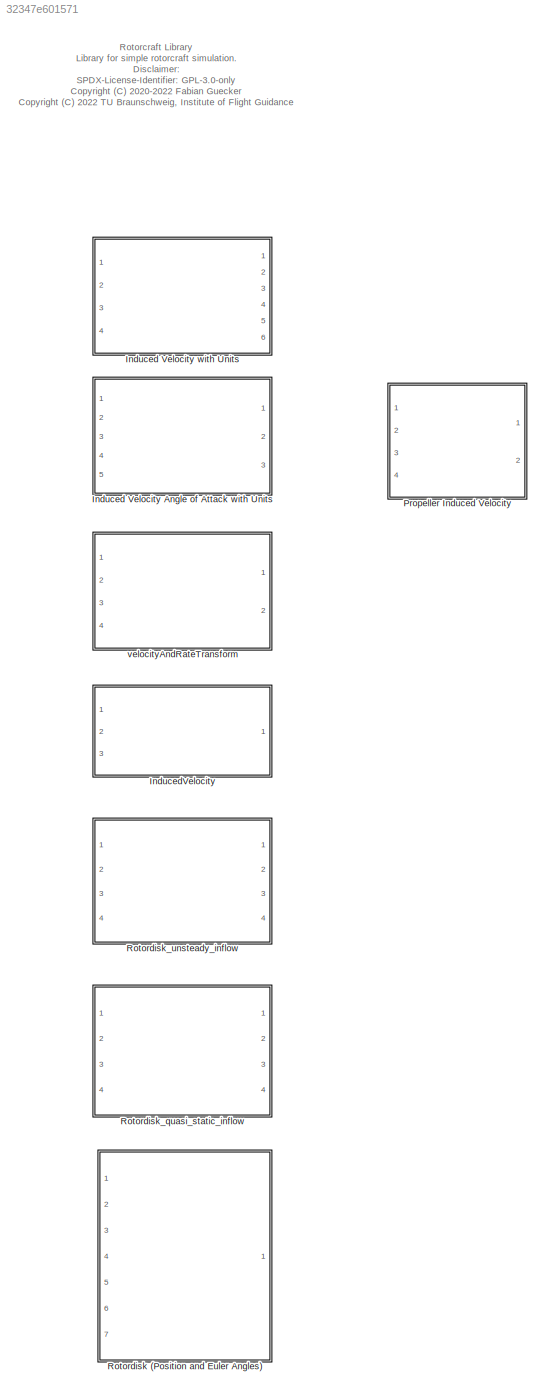
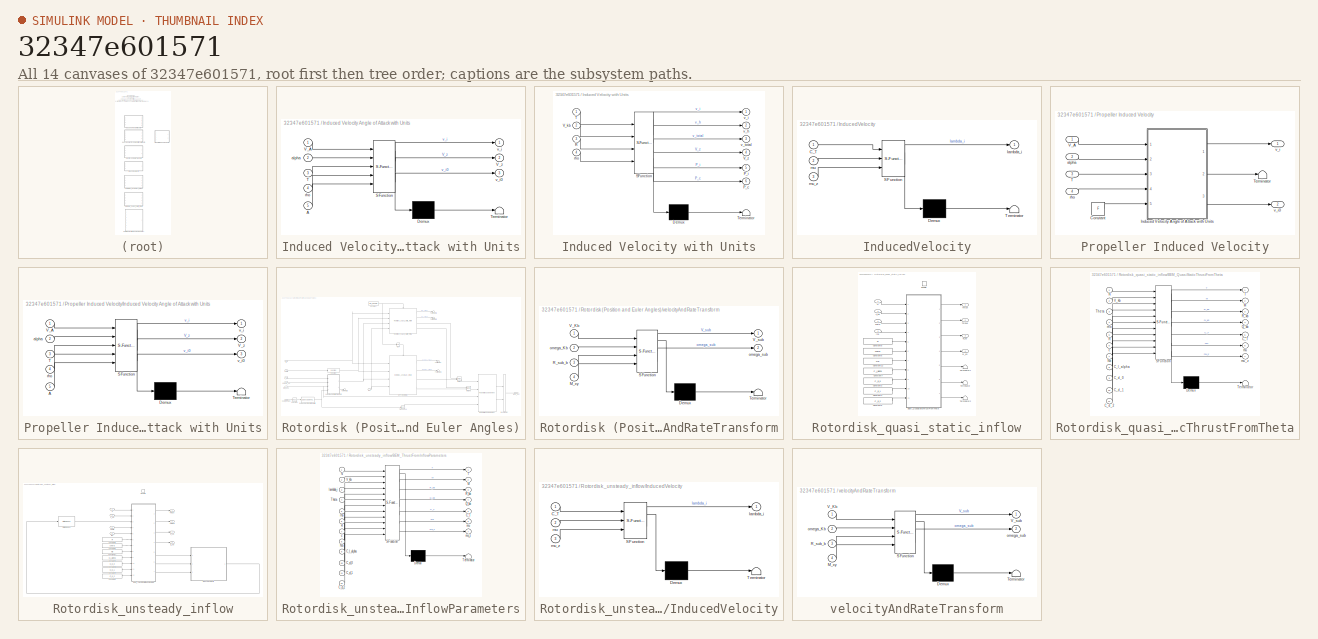
[diagram: thumbnail index - all 14 canvases of the model, root first then tree order]
MODEL slx_32347e601571
KIND library
CONFIG AbsTol = auto
CONFIG EnableMultiTasking = off
CONFIG FixedStep = auto
CONFIG MaxStep = auto
CONFIG MinStep = auto
CONFIG RelTol = 1e-3
CONFIG SampleTimeConstraint = Unconstrained
CONFIG Solver = VariableStepAuto
CONFIG SolverName = VariableStepAuto
CONFIG StartTime = 0.0
CONFIG StopTime = 10.0
BLOCK [SubSystem] Induced Velocity Angle of Attack with Units
  ErrorFcn = Stateflow.Translate.translate
  PermitHierarchicalResolution = ExplicitOnly
  Ports = [5, 3]
  RequestExecContextInheritance = off
  SFBlockType = MATLAB Function
  TreatAsAtomicUnit = on
BLOCK [Demux] Induced Velocity Angle of Attack with Units/ Demux 
  Outputs = 1
  Ports = [1, 1]
BLOCK [S-Function] Induced Velocity Angle of Attack with Units/ SFunction 
  EnableBusSupport = off
  FunctionName = sf_sfun
  PortCounts = [5 4]
  Ports = [5, 4]
  SFcnIsStateOwnerBlock = off
  SFunctionDeploymentMode = off
  Tag = Stateflow S-Function rotorcraft_lib 5
BLOCK [Terminator] Induced Velocity Angle of Attack with Units/ Terminator 
BLOCK [Inport] Induced Velocity Angle of Attack with Units/A
  IconDisplay = Port number
  Port = 5
BLOCK [Inport] Induced Velocity Angle of Attack with Units/T
  IconDisplay = Port number
  Port = 3
BLOCK [Inport] Induced Velocity Angle of Attack with Units/V_A
  IconDisplay = Port number
BLOCK [Outport] Induced Velocity Angle of Attack with Units/V_z
  IconDisplay = Port number
  Port = 2
  VectorParamsAs1DForOutWhenUnconnected = on
BLOCK [Inport] Induced Velocity Angle of Attack with Units/alpha
  IconDisplay = Port number
  Port = 2
BLOCK [Inport] Induced Velocity Angle of Attack with Units/rho
  IconDisplay = Port number
  Port = 4
BLOCK [Outport] Induced Velocity Angle of Attack with Units/v_i
  IconDisplay = Port number
  VectorParamsAs1DForOutWhenUnconnected = on
BLOCK [Outport] Induced Velocity Angle of Attack with Units/v_i0
  IconDisplay = Port number
  Port = 3
BLOCK [SubSystem] Induced Velocity with Units
  ErrorFcn = Stateflow.Translate.translate
  PermitHierarchicalResolution = ExplicitOnly
  Ports = [4, 6]
  RequestExecContextInheritance = off
  SFBlockType = MATLAB Function
  TreatAsAtomicUnit = on
BLOCK [Demux] Induced Velocity with Units/ Demux 
  Outputs = 1
  Ports = [1, 1]
BLOCK [S-Function] Induced Velocity with Units/ SFunction 
  EnableBusSupport = off
  FunctionName = sf_sfun
  PortCounts = [4 7]
  Ports = [4, 7]
  SFcnIsStateOwnerBlock = off
  SFunctionDeploymentMode = off
  Tag = Stateflow S-Function rotorcraft_lib 6
BLOCK [Terminator] Induced Velocity with Units/ Terminator 
BLOCK [Outport] Induced Velocity with Units/P_c
  IconDisplay = Port number
  Port = 6
BLOCK [Outport] Induced Velocity with Units/P_i
  IconDisplay = Port number
  Port = 5
BLOCK [Inport] Induced Velocity with Units/R
  IconDisplay = Port number
  Port = 3
BLOCK [Inport] Induced Velocity with Units/T
  IconDisplay = Port number
BLOCK [Inport] Induced Velocity with Units/V_kb
  IconDisplay = Port number
  Port = 2
BLOCK [Outport] Induced Velocity with Units/V_z
  IconDisplay = Port number
  Port = 4
BLOCK [Inport] Induced Velocity with Units/rho
  IconDisplay = Port number
  Port = 4
BLOCK [Outport] Induced Velocity with Units/v_h
  IconDisplay = Port number
  Port = 2
  VectorParamsAs1DForOutWhenUnconnected = on
BLOCK [Outport] Induced Velocity with Units/v_i
  IconDisplay = Port number
  VectorParamsAs1DForOutWhenUnconnected = on
BLOCK [Outport] Induced Velocity with Units/v_total
  IconDisplay = Port number
  Port = 3
BLOCK [SubSystem] InducedVelocity
  ErrorFcn = Stateflow.Translate.translate
  PermitHierarchicalResolution = ExplicitOnly
  Ports = [3, 1]
  RequestExecContextInheritance = off
  SFBlockType = MATLAB Function
  TreatAsAtomicUnit = on
BLOCK [Demux] InducedVelocity/ Demux 
  Outputs = 1
  Ports = [1, 1]
BLOCK [S-Function] InducedVelocity/ SFunction 
  EnableBusSupport = off
  FunctionName = sf_sfun
  PortCounts = [3 2]
  Ports = [3, 2]
  SFcnIsStateOwnerBlock = off
  SFunctionDeploymentMode = off
  Tag = Stateflow S-Function rotorcraft_lib 1
BLOCK [Terminator] InducedVelocity/ Terminator 
BLOCK [Inport] InducedVelocity/C_T
  IconDisplay = Port number
BLOCK [Outport] InducedVelocity/lambda_i
  IconDisplay = Port number
  VectorParamsAs1DForOutWhenUnconnected = on
BLOCK [Inport] InducedVelocity/mu
  IconDisplay = Port number
  Port = 2
BLOCK [Inport] InducedVelocity/mu_z
  IconDisplay = Port number
  Port = 3
BLOCK [SubSystem] Propeller Induced Velocity
  Ports = [4, 2]
  RequestExecContextInheritance = off
BLOCK [Constant] Propeller Induced Velocity/Constant
  Value = F
BLOCK [SubSystem] Propeller Induced Velocity/Induced Velocity Angle of Attack with Units
  ErrorFcn = Stateflow.Translate.translate
  PermitHierarchicalResolution = ExplicitOnly
  Ports = [5, 3]
  RequestExecContextInheritance = off
  SFBlockType = MATLAB Function
  TreatAsAtomicUnit = on
BLOCK [Demux] Propeller Induced Velocity/Induced Velocity Angle of Attack with Units/ Demux 
  Outputs = 1
  Ports = [1, 1]
BLOCK [S-Function] Propeller Induced Velocity/Induced Velocity Angle of Attack with Units/ SFunction 
  EnableBusSupport = off
  FunctionName = sf_sfun
  PortCounts = [5 4]
  Ports = [5, 4]
  SFcnIsStateOwnerBlock = off
  SFunctionDeploymentMode = off
  Tag = Stateflow S-Function rotorcraft_lib 9
BLOCK [Terminator] Propeller Induced Velocity/Induced Velocity Angle of Attack with Units/ Terminator 
BLOCK [Inport] Propeller Induced Velocity/Induced Velocity Angle of Attack with Units/A
  IconDisplay = Port number
  Port = 5
BLOCK [Inport] Propeller Induced Velocity/Induced Velocity Angle of Attack with Units/T
  IconDisplay = Port number
  Port = 3
BLOCK [Inport] Propeller Induced Velocity/Induced Velocity Angle of Attack with Units/V_A
  IconDisplay = Port number
BLOCK [Outport] Propeller Induced Velocity/Induced Velocity Angle of Attack with Units/V_z
  IconDisplay = Port number
  Port = 2
  VectorParamsAs1DForOutWhenUnconnected = on
BLOCK [Inport] Propeller Induced Velocity/Induced Velocity Angle of Attack with Units/alpha
  IconDisplay = Port number
  Port = 2
BLOCK [Inport] Propeller Induced Velocity/Induced Velocity Angle of Attack with Units/rho
  IconDisplay = Port number
  Port = 4
BLOCK [Outport] Propeller Induced Velocity/Induced Velocity Angle of Attack with Units/v_i
  IconDisplay = Port number
  VectorParamsAs1DForOutWhenUnconnected = on
BLOCK [Outport] Propeller Induced Velocity/Induced Velocity Angle of Attack with Units/v_i0
  IconDisplay = Port number
  Port = 3
BLOCK [Inport] Propeller Induced Velocity/T
  IconDisplay = Port number
  Port = 3
BLOCK [Terminator] Propeller Induced Velocity/Terminator
BLOCK [Inport] Propeller Induced Velocity/V_A
  IconDisplay = Port number
BLOCK [Inport] Propeller Induced Velocity/alpha
  IconDisplay = Port number
  Port = 2
BLOCK [Inport] Propeller Induced Velocity/rho
  IconDisplay = Port number
  Port = 4
BLOCK [Outport] Propeller Induced Velocity/v_i
  IconDisplay = Port number
BLOCK [Outport] Propeller Induced Velocity/v_i0
  IconDisplay = Port number
  Port = 2
BLOCK [SubSystem] Rotordisk (Position and Euler Angles)
  Ports = [7, 1]
  RequestExecContextInheritance = off
BLOCK [BusCreator] Rotordisk (Position and Euler Angles)/Bus Creator
  DisplayOption = bar
  InheritFromInputs = on
  Inputs = 2
  Ports = [2, 1]
BLOCK [Outport] Rotordisk (Position and Euler Angles)/Bus_out
  IconDisplay = Port number
  VectorParamsAs1DForOutWhenUnconnected = on
BLOCK [Constant] Rotordisk (Position and Euler Angles)/Constant
  Value = QS_Enable
BLOCK [Reference] Rotordisk (Position and Euler Angles)/Euler Angles to Rotation Matrix  REF=axes_transformation_lib/Euler Angles to Rotation Matrix  (lib defined in slx_69e2413c78c0)
  Ports = [1, 1]
  SourceBlock = axes_transformation_lib/Euler Angles to Rotation Matrix
  SourceProductName = LADAC
  SourceType = SubSystem
BLOCK [Reference] Rotordisk (Position and Euler Angles)/Force to force and moment  REF=axes_transformation_lib/Force to force and moment  (lib defined in slx_69e2413c78c0)
  Ports = [4, 2]
  SourceBlock = axes_transformation_lib/Force to force and moment
  SourceProductName = LADAC
  SourceType = SubSystem
BLOCK [Merge] Rotordisk (Position and Euler Angles)/Merge
  Ports = [2, 1]
BLOCK [Merge] Rotordisk (Position and Euler Angles)/Merge1
  Ports = [2, 1]
BLOCK [Inport] Rotordisk (Position and Euler Angles)/N
  IconDisplay = Port number
  Port = 2
BLOCK [Logic] Rotordisk (Position and Euler Angles)/NOT
  AllPortsSameDT = off
  IconShape = distinctive
  Operator = NOT
  OutDataTypeStr = boolean
  Ports = [1, 1]
BLOCK [Reference] Rotordisk (Position and Euler Angles)/OPT_Rotordisk  REF=$bdroot/Rotordisk_unsteady_inflow
  Ports = [4, 4, 1]
  SourceBlock = $bdroot/Rotordisk_unsteady_inflow
BLOCK [Reference] Rotordisk (Position and Euler Angles)/Rotordisk_quasi_static_inflow  REF=$bdroot/Rotordisk_quasi_static_inflow
  Ports = [4, 4, 1]
  SourceBlock = $bdroot/Rotordisk_quasi_static_inflow
BLOCK [Terminator] Rotordisk (Position and Euler Angles)/Terminator
BLOCK [Terminator] Rotordisk (Position and Euler Angles)/Terminator1
BLOCK [Terminator] Rotordisk (Position and Euler Angles)/Terminator2
BLOCK [Terminator] Rotordisk (Position and Euler Angles)/Terminator5
BLOCK [Terminator] Rotordisk (Position and Euler Angles)/Terminator6
BLOCK [Inport] Rotordisk (Position and Euler Angles)/Theta
  IconDisplay = Port number
  Port = 4
BLOCK [Math] Rotordisk (Position and Euler Angles)/Transpose
  Operator = transpose
  Ports = [1, 1]
BLOCK [Inport] Rotordisk (Position and Euler Angles)/V_kb
  IconDisplay = Port number
  Port = 5
BLOCK [Reference] Rotordisk (Position and Euler Angles)/deg2rad  REF=unit_conversions_lib/deg2rad  (lib defined in slx_ae2855d4d91e)
  Ports = [1, 1]
  SourceBlock = unit_conversions_lib/deg2rad
  SourceProductName = LADAC
BLOCK [Reference] Rotordisk (Position and Euler Angles)/deg2rad1  REF=unit_conversions_lib/deg2rad  (lib defined in slx_ae2855d4d91e)
  Ports = [1, 1]
  SourceBlock = unit_conversions_lib/deg2rad
  SourceProductName = LADAC
BLOCK [Inport] Rotordisk (Position and Euler Angles)/euler_angles
  IconDisplay = Port number
  Port = 3
BLOCK [Inport] Rotordisk (Position and Euler Angles)/omega_kb
  IconDisplay = Port number
  Port = 6
BLOCK [Inport] Rotordisk (Position and Euler Angles)/rho
  IconDisplay = Port number
  Port = 7
BLOCK [Inport] Rotordisk (Position and Euler Angles)/rotor_pos
  IconDisplay = Port number
BLOCK [SubSystem] Rotordisk (Position and Euler Angles)/velocityAndRateTransform
  ErrorFcn = Stateflow.Translate.translate
  PermitHierarchicalResolution = ExplicitOnly
  Ports = [4, 2]
  RequestExecContextInheritance = off
  SFBlockType = MATLAB Function
  TreatAsAtomicUnit = on
BLOCK [Demux] Rotordisk (Position and Euler Angles)/velocityAndRateTransform/ Demux 
  Outputs = 1
  Ports = [1, 1]
BLOCK [S-Function] Rotordisk (Position and Euler Angles)/velocityAndRateTransform/ SFunction 
  EnableBusSupport = off
  FunctionName = sf_sfun
  PortCounts = [4 3]
  Ports = [4, 3]
  SFcnIsStateOwnerBlock = off
  SFunctionDeploymentMode = off
  Tag = Stateflow S-Function rotorcraft_lib 4
BLOCK [Terminator] Rotordisk (Position and Euler Angles)/velocityAndRateTransform/ Terminator 
BLOCK [Inport] Rotordisk (Position and Euler Angles)/velocityAndRateTransform/M_xy
  IconDisplay = Port number
  Port = 4
BLOCK [Inport] Rotordisk (Position and Euler Angles)/velocityAndRateTransform/R_sub_b
  IconDisplay = Port number
  Port = 3
BLOCK [Inport] Rotordisk (Position and Euler Angles)/velocityAndRateTransform/V_Kb
  IconDisplay = Port number
BLOCK [Outport] Rotordisk (Position and Euler Angles)/velocityAndRateTransform/V_sub
  IconDisplay = Port number
  VectorParamsAs1DForOutWhenUnconnected = on
BLOCK [Inport] Rotordisk (Position and Euler Angles)/velocityAndRateTransform/omega_Kb
  IconDisplay = Port number
  Port = 2
BLOCK [Outport] Rotordisk (Position and Euler Angles)/velocityAndRateTransform/omega_sub
  IconDisplay = Port number
  Port = 2
  VectorParamsAs1DForOutWhenUnconnected = on
BLOCK [SubSystem] Rotordisk_quasi_static_inflow
  Ports = [4, 4, 1]
  RequestExecContextInheritance = off
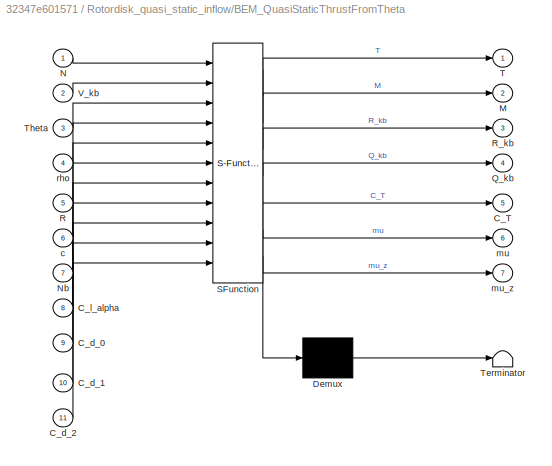
BLOCK [SubSystem] Rotordisk_quasi_static_inflow/BEM_QuasiStaticThrustFromTheta
  ErrorFcn = Stateflow.Translate.translate
  PermitHierarchicalResolution = ExplicitOnly
  Ports = [11, 7]
  RequestExecContextInheritance = off
  SFBlockType = MATLAB Function
  TreatAsAtomicUnit = on
BLOCK [Demux] Rotordisk_quasi_static_inflow/BEM_QuasiStaticThrustFromTheta/ Demux 
  Outputs = 1
  Ports = [1, 1]
BLOCK [S-Function] Rotordisk_quasi_static_inflow/BEM_QuasiStaticThrustFromTheta/ SFunction 
  EnableBusSupport = off
  FunctionName = sf_sfun
  PortCounts = [11 8]
  Ports = [11, 8]
  SFcnIsStateOwnerBlock = off
  SFunctionDeploymentMode = off
  Tag = Stateflow S-Function rotorcraft_lib 2
BLOCK [Terminator] Rotordisk_quasi_static_inflow/BEM_QuasiStaticThrustFromTheta/ Terminator 
BLOCK [Outport] Rotordisk_quasi_static_inflow/BEM_QuasiStaticThrustFromTheta/C_T
  IconDisplay = Port number
  Port = 5
  VectorParamsAs1DForOutWhenUnconnected = on
BLOCK [Inport] Rotordisk_quasi_static_inflow/BEM_QuasiStaticThrustFromTheta/C_d_0
  IconDisplay = Port number
  Port = 9
BLOCK [Inport] Rotordisk_quasi_static_inflow/BEM_QuasiStaticThrustFromTheta/C_d_1
  IconDisplay = Port number
  Port = 10
BLOCK [Inport] Rotordisk_quasi_static_inflow/BEM_QuasiStaticThrustFromTheta/C_d_2
  IconDisplay = Port number
  Port = 11
BLOCK [Inport] Rotordisk_quasi_static_inflow/BEM_QuasiStaticThrustFromTheta/C_l_alpha
  IconDisplay = Port number
  Port = 8
BLOCK [Outport] Rotordisk_quasi_static_inflow/BEM_QuasiStaticThrustFromTheta/M
  IconDisplay = Port number
  Port = 2
  VectorParamsAs1DForOutWhenUnconnected = on
BLOCK [Inport] Rotordisk_quasi_static_inflow/BEM_QuasiStaticThrustFromTheta/N
  IconDisplay = Port number
BLOCK [Inport] Rotordisk_quasi_static_inflow/BEM_QuasiStaticThrustFromTheta/Nb
  IconDisplay = Port number
  Port = 7
BLOCK [Outport] Rotordisk_quasi_static_inflow/BEM_QuasiStaticThrustFromTheta/Q_kb
  IconDisplay = Port number
  Port = 4
  VectorParamsAs1DForOutWhenUnconnected = on
BLOCK [Inport] Rotordisk_quasi_static_inflow/BEM_QuasiStaticThrustFromTheta/R
  IconDisplay = Port number
  Port = 5
BLOCK [Outport] Rotordisk_quasi_static_inflow/BEM_QuasiStaticThrustFromTheta/R_kb
  IconDisplay = Port number
  Port = 3
  VectorParamsAs1DForOutWhenUnconnected = on
BLOCK [Outport] Rotordisk_quasi_static_inflow/BEM_QuasiStaticThrustFromTheta/T
  IconDisplay = Port number
  VectorParamsAs1DForOutWhenUnconnected = on
BLOCK [Inport] Rotordisk_quasi_static_inflow/BEM_QuasiStaticThrustFromTheta/Theta
  IconDisplay = Port number
  Port = 3
BLOCK [Inport] Rotordisk_quasi_static_inflow/BEM_QuasiStaticThrustFromTheta/V_kb
  IconDisplay = Port number
  Port = 2
BLOCK [Inport] Rotordisk_quasi_static_inflow/BEM_QuasiStaticThrustFromTheta/c
  IconDisplay = Port number
  Port = 6
BLOCK [Outport] Rotordisk_quasi_static_inflow/BEM_QuasiStaticThrustFromTheta/mu
  IconDisplay = Port number
  Port = 6
  VectorParamsAs1DForOutWhenUnconnected = on
BLOCK [Outport] Rotordisk_quasi_static_inflow/BEM_QuasiStaticThrustFromTheta/mu_z
  IconDisplay = Port number
  Port = 7
  VectorParamsAs1DForOutWhenUnconnected = on
BLOCK [Inport] Rotordisk_quasi_static_inflow/BEM_QuasiStaticThrustFromTheta/rho
  IconDisplay = Port number
  Port = 4
BLOCK [Constant] Rotordisk_quasi_static_inflow/Constant12
  Value = Nb
BLOCK [Constant] Rotordisk_quasi_static_inflow/Constant3
  Value = C_d_0
BLOCK [Constant] Rotordisk_quasi_static_inflow/Constant4
  Value = C_d_1
BLOCK [Constant] Rotordisk_quasi_static_inflow/Constant5
  Value = C_d_2
BLOCK [Constant] Rotordisk_quasi_static_inflow/Constant6
  Value = chord
BLOCK [Constant] Rotordisk_quasi_static_inflow/Constant7
  Value = C_l_alpha
BLOCK [Constant] Rotordisk_quasi_static_inflow/Constant8
  Value = R
BLOCK [EnablePort] Rotordisk_quasi_static_inflow/Enable
  Ports = []
BLOCK [Inport] Rotordisk_quasi_static_inflow/N
  IconDisplay = Port number
BLOCK [Outport] Rotordisk_quasi_static_inflow/Q_kb
  IconDisplay = Port number
  Port = 4
  VectorParamsAs1DForOutWhenUnconnected = on
BLOCK [Outport] Rotordisk_quasi_static_inflow/R_kb
  IconDisplay = Port number
  Port = 3
  VectorParamsAs1DForOutWhenUnconnected = on
BLOCK [Terminator] Rotordisk_quasi_static_inflow/Terminator
BLOCK [Terminator] Rotordisk_quasi_static_inflow/Terminator1
BLOCK [Terminator] Rotordisk_quasi_static_inflow/Terminator2
BLOCK [Inport] Rotordisk_quasi_static_inflow/Theta
  IconDisplay = Port number
  Port = 2
BLOCK [Outport] Rotordisk_quasi_static_inflow/Thrust
  IconDisplay = Port number
  VectorParamsAs1DForOutWhenUnconnected = on
BLOCK [Outport] Rotordisk_quasi_static_inflow/Torque
  IconDisplay = Port number
  Port = 2
  VectorParamsAs1DForOutWhenUnconnected = on
BLOCK [Inport] Rotordisk_quasi_static_inflow/V_kb
  IconDisplay = Port number
  Port = 3
BLOCK [Inport] Rotordisk_quasi_static_inflow/rho
  IconDisplay = Port number
  Port = 4
BLOCK [SubSystem] Rotordisk_unsteady_inflow
  Ports = [4, 4, 1]
  RequestExecContextInheritance = off
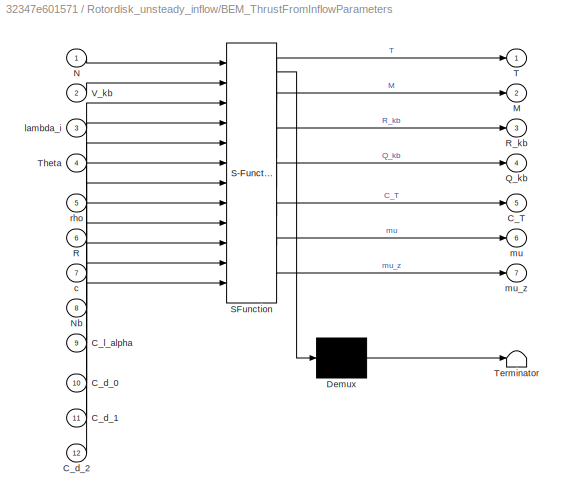
BLOCK [SubSystem] Rotordisk_unsteady_inflow/BEM_ThrustFromInflowParameters
  ErrorFcn = Stateflow.Translate.translate
  PermitHierarchicalResolution = ExplicitOnly
  Ports = [12, 7]
  RequestExecContextInheritance = off
  SFBlockType = MATLAB Function
  TreatAsAtomicUnit = on
BLOCK [Demux] Rotordisk_unsteady_inflow/BEM_ThrustFromInflowParameters/ Demux 
  Outputs = 1
  Ports = [1, 1]
BLOCK [S-Function] Rotordisk_unsteady_inflow/BEM_ThrustFromInflowParameters/ SFunction 
  EnableBusSupport = off
  FunctionName = sf_sfun
  PortCounts = [12 8]
  Ports = [12, 8]
  SFcnIsStateOwnerBlock = off
  SFunctionDeploymentMode = off
  Tag = Stateflow S-Function rotorcraft_lib 13
BLOCK [Terminator] Rotordisk_unsteady_inflow/BEM_ThrustFromInflowParameters/ Terminator 
BLOCK [Outport] Rotordisk_unsteady_inflow/BEM_ThrustFromInflowParameters/C_T
  IconDisplay = Port number
  Port = 5
  VectorParamsAs1DForOutWhenUnconnected = on
BLOCK [Inport] Rotordisk_unsteady_inflow/BEM_ThrustFromInflowParameters/C_d_0
  IconDisplay = Port number
  Port = 10
BLOCK [Inport] Rotordisk_unsteady_inflow/BEM_ThrustFromInflowParameters/C_d_1
  IconDisplay = Port number
  Port = 11
BLOCK [Inport] Rotordisk_unsteady_inflow/BEM_ThrustFromInflowParameters/C_d_2
  IconDisplay = Port number
  Port = 12
BLOCK [Inport] Rotordisk_unsteady_inflow/BEM_ThrustFromInflowParameters/C_l_alpha
  IconDisplay = Port number
  Port = 9
BLOCK [Outport] Rotordisk_unsteady_inflow/BEM_ThrustFromInflowParameters/M
  IconDisplay = Port number
  Port = 2
  VectorParamsAs1DForOutWhenUnconnected = on
BLOCK [Inport] Rotordisk_unsteady_inflow/BEM_ThrustFromInflowParameters/N
  IconDisplay = Port number
BLOCK [Inport] Rotordisk_unsteady_inflow/BEM_ThrustFromInflowParameters/Nb
  IconDisplay = Port number
  Port = 8
BLOCK [Outport] Rotordisk_unsteady_inflow/BEM_ThrustFromInflowParameters/Q_kb
  IconDisplay = Port number
  Port = 4
  VectorParamsAs1DForOutWhenUnconnected = on
BLOCK [Inport] Rotordisk_unsteady_inflow/BEM_ThrustFromInflowParameters/R
  IconDisplay = Port number
  Port = 6
BLOCK [Outport] Rotordisk_unsteady_inflow/BEM_ThrustFromInflowParameters/R_kb
  IconDisplay = Port number
  Port = 3
  VectorParamsAs1DForOutWhenUnconnected = on
BLOCK [Outport] Rotordisk_unsteady_inflow/BEM_ThrustFromInflowParameters/T
  IconDisplay = Port number
  VectorParamsAs1DForOutWhenUnconnected = on
BLOCK [Inport] Rotordisk_unsteady_inflow/BEM_ThrustFromInflowParameters/Theta
  IconDisplay = Port number
  Port = 4
BLOCK [Inport] Rotordisk_unsteady_inflow/BEM_ThrustFromInflowParameters/V_kb
  IconDisplay = Port number
  Port = 2
BLOCK [Inport] Rotordisk_unsteady_inflow/BEM_ThrustFromInflowParameters/c
  IconDisplay = Port number
  Port = 7
BLOCK [Inport] Rotordisk_unsteady_inflow/BEM_ThrustFromInflowParameters/lambda_i
  IconDisplay = Port number
  Port = 3
BLOCK [Outport] Rotordisk_unsteady_inflow/BEM_ThrustFromInflowParameters/mu
  IconDisplay = Port number
  Port = 6
  VectorParamsAs1DForOutWhenUnconnected = on
BLOCK [Outport] Rotordisk_unsteady_inflow/BEM_ThrustFromInflowParameters/mu_z
  IconDisplay = Port number
  Port = 7
  VectorParamsAs1DForOutWhenUnconnected = on
BLOCK [Inport] Rotordisk_unsteady_inflow/BEM_ThrustFromInflowParameters/rho
  IconDisplay = Port number
  Port = 5
BLOCK [Constant] Rotordisk_unsteady_inflow/Constant12
  Value = Nb
BLOCK [Constant] Rotordisk_unsteady_inflow/Constant3
  Value = C_d_0
BLOCK [Constant] Rotordisk_unsteady_inflow/Constant4
  Value = C_d_1
BLOCK [Constant] Rotordisk_unsteady_inflow/Constant5
  Value = C_d_2
BLOCK [Constant] Rotordisk_unsteady_inflow/Constant6
  Value = chord
BLOCK [Constant] Rotordisk_unsteady_inflow/Constant7
  Value = C_l_alpha
BLOCK [Constant] Rotordisk_unsteady_inflow/Constant8
  Value = R
BLOCK [EnablePort] Rotordisk_unsteady_inflow/Enable
  Ports = []
BLOCK [SubSystem] Rotordisk_unsteady_inflow/InducedVelocity
  ErrorFcn = Stateflow.Translate.translate
  PermitHierarchicalResolution = ExplicitOnly
  Ports = [3, 1]
  RequestExecContextInheritance = off
  SFBlockType = MATLAB Function
  TreatAsAtomicUnit = on
BLOCK [Demux] Rotordisk_unsteady_inflow/InducedVelocity/ Demux 
  Outputs = 1
  Ports = [1, 1]
BLOCK [S-Function] Rotordisk_unsteady_inflow/InducedVelocity/ SFunction 
  EnableBusSupport = off
  FunctionName = sf_sfun
  PortCounts = [3 2]
  Ports = [3, 2]
  SFcnIsStateOwnerBlock = off
  SFunctionDeploymentMode = off
  Tag = Stateflow S-Function rotorcraft_lib 3
BLOCK [Terminator] Rotordisk_unsteady_inflow/InducedVelocity/ Terminator 
BLOCK [Inport] Rotordisk_unsteady_inflow/InducedVelocity/C_T
  IconDisplay = Port number
BLOCK [Outport] Rotordisk_unsteady_inflow/InducedVelocity/lambda_i
  IconDisplay = Port number
  VectorParamsAs1DForOutWhenUnconnected = on
BLOCK [Inport] Rotordisk_unsteady_inflow/InducedVelocity/mu
  IconDisplay = Port number
  Port = 2
BLOCK [Inport] Rotordisk_unsteady_inflow/InducedVelocity/mu_z
  IconDisplay = Port number
  Port = 3
BLOCK [Inport] Rotordisk_unsteady_inflow/N
  IconDisplay = Port number
BLOCK [Outport] Rotordisk_unsteady_inflow/Q_kb
  IconDisplay = Port number
  Port = 4
  VectorParamsAs1DForOutWhenUnconnected = on
BLOCK [Outport] Rotordisk_unsteady_inflow/R_kb
  IconDisplay = Port number
  Port = 3
  VectorParamsAs1DForOutWhenUnconnected = on
BLOCK [StateSpace] Rotordisk_unsteady_inflow/State-Space
  A = ssA
  B = ssB
  C = ssC
  D = ssD
  InitialCondition = inital_value
  Ports = [1, 1]
BLOCK [Inport] Rotordisk_unsteady_inflow/Theta
  IconDisplay = Port number
  Port = 2
BLOCK [Outport] Rotordisk_unsteady_inflow/Thrust
  IconDisplay = Port number
  VectorParamsAs1DForOutWhenUnconnected = on
BLOCK [Outport] Rotordisk_unsteady_inflow/Torque
  IconDisplay = Port number
  Port = 2
  VectorParamsAs1DForOutWhenUnconnected = on
BLOCK [Inport] Rotordisk_unsteady_inflow/V_kb
  IconDisplay = Port number
  Port = 3
BLOCK [Inport] Rotordisk_unsteady_inflow/rho
  IconDisplay = Port number
  Port = 4
BLOCK [SubSystem] velocityAndRateTransform
  ErrorFcn = Stateflow.Translate.translate
  PermitHierarchicalResolution = ExplicitOnly
  Ports = [4, 2]
  RequestExecContextInheritance = off
  SFBlockType = MATLAB Function
  TreatAsAtomicUnit = on
BLOCK [Demux] velocityAndRateTransform/ Demux 
  Outputs = 1
  Ports = [1, 1]
BLOCK [S-Function] velocityAndRateTransform/ SFunction 
  EnableBusSupport = off
  FunctionName = sf_sfun
  PortCounts = [4 3]
  Ports = [4, 3]
  SFcnIsStateOwnerBlock = off
  SFunctionDeploymentMode = off
  Tag = Stateflow S-Function rotorcraft_lib 8
BLOCK [Terminator] velocityAndRateTransform/ Terminator 
BLOCK [Inport] velocityAndRateTransform/M_xy
  IconDisplay = Port number
  Port = 4
BLOCK [Inport] velocityAndRateTransform/R_sub_b
  IconDisplay = Port number
  Port = 3
BLOCK [Inport] velocityAndRateTransform/V_Kb
  IconDisplay = Port number
BLOCK [Outport] velocityAndRateTransform/V_sub
  IconDisplay = Port number
  VectorParamsAs1DForOutWhenUnconnected = on
BLOCK [Inport] velocityAndRateTransform/omega_Kb
  IconDisplay = Port number
  Port = 2
BLOCK [Outport] velocityAndRateTransform/omega_sub
  IconDisplay = Port number
  Port = 2
  VectorParamsAs1DForOutWhenUnconnected = on
ANNOTATION (root): Rotorcraft Library Library for simple rotorcraft simulation. Disclaimer: SPDX-License-Identifier: GPL-3.0-only <copyright redacted>
LINE Propeller Induced Velocity/Constant:1 -> Propeller Induced Velocity/Induced Velocity Angle of Attack with Units:5
LINE Propeller Induced Velocity/Induced Velocity Angle of Attack with Units:1 -> Propeller Induced Velocity/v_i:1
LINE Propeller Induced Velocity/Induced Velocity Angle of Attack with Units:2 -> Propeller Induced Velocity/Terminator:1
LINE Propeller Induced Velocity/Induced Velocity Angle of Attack with Units:3 -> Propeller Induced Velocity/v_i0:1
LINE Propeller Induced Velocity/T:1 -> Propeller Induced Velocity/Induced Velocity Angle of Attack with Units:3
LINE Propeller Induced Velocity/V_A:1 -> Propeller Induced Velocity/Induced Velocity Angle of Attack with Units:1
LINE Propeller Induced Velocity/alpha:1 -> Propeller Induced Velocity/Induced Velocity Angle of Attack with Units:2
LINE Propeller Induced Velocity/rho:1 -> Propeller Induced Velocity/Induced Velocity Angle of Attack with Units:4
LINE Rotordisk (Position and Euler Angles)/Bus Creator:1 -> Rotordisk (Position and Euler Angles)/Bus_out:1
NET Rotordisk (Position and Euler Angles)/Constant:1 -> Rotordisk (Position and Euler Angles)/NOT:1, Rotordisk (Position and Euler Angles)/Rotordisk_quasi_static_inflow:enable
NET Rotordisk (Position and Euler Angles)/Euler Angles to Rotation Matrix:1 -> Rotordisk (Position and Euler Angles)/Transpose:1, Rotordisk (Position and Euler Angles)/velocityAndRateTransform:4
LINE Rotordisk (Position and Euler Angles)/Force to force and moment:1 -> Rotordisk (Position and Euler Angles)/Bus Creator:1
LINE Rotordisk (Position and Euler Angles)/Force to force and moment:2 -> Rotordisk (Position and Euler Angles)/Bus Creator:2
LINE Rotordisk (Position and Euler Angles)/Merge1:1 -> Rotordisk (Position and Euler Angles)/Force to force and moment:2
LINE Rotordisk (Position and Euler Angles)/Merge:1 -> Rotordisk (Position and Euler Angles)/Force to force and moment:1
NET Rotordisk (Position and Euler Angles)/N:1 -> Rotordisk (Position and Euler Angles)/OPT_Rotordisk:1, Rotordisk (Position and Euler Angles)/Rotordisk_quasi_static_inflow:1
LINE Rotordisk (Position and Euler Angles)/NOT:1 -> Rotordisk (Position and Euler Angles)/OPT_Rotordisk:enable
LINE Rotordisk (Position and Euler Angles)/OPT_Rotordisk:1 -> Rotordisk (Position and Euler Angles)/Terminator:1
LINE Rotordisk (Position and Euler Angles)/OPT_Rotordisk:2 -> Rotordisk (Position and Euler Angles)/Terminator1:1
LINE Rotordisk (Position and Euler Angles)/OPT_Rotordisk:3 -> Rotordisk (Position and Euler Angles)/Merge:2
LINE Rotordisk (Position and Euler Angles)/OPT_Rotordisk:4 -> Rotordisk (Position and Euler Angles)/Merge1:2
LINE Rotordisk (Position and Euler Angles)/Rotordisk_quasi_static_inflow:1 -> Rotordisk (Position and Euler Angles)/Terminator6:1
LINE Rotordisk (Position and Euler Angles)/Rotordisk_quasi_static_inflow:2 -> Rotordisk (Position and Euler Angles)/Terminator5:1
LINE Rotordisk (Position and Euler Angles)/Rotordisk_quasi_static_inflow:3 -> Rotordisk (Position and Euler Angles)/Merge:1
LINE Rotordisk (Position and Euler Angles)/Rotordisk_quasi_static_inflow:4 -> Rotordisk (Position and Euler Angles)/Merge1:1
LINE Rotordisk (Position and Euler Angles)/Theta:1 -> Rotordisk (Position and Euler Angles)/deg2rad:1
LINE Rotordisk (Position and Euler Angles)/Transpose:1 -> Rotordisk (Position and Euler Angles)/Force to force and moment:4
LINE Rotordisk (Position and Euler Angles)/V_kb:1 -> Rotordisk (Position and Euler Angles)/velocityAndRateTransform:1
LINE Rotordisk (Position and Euler Angles)/deg2rad1:1 -> Rotordisk (Position and Euler Angles)/Euler Angles to Rotation Matrix:1
NET Rotordisk (Position and Euler Angles)/deg2rad:1 -> Rotordisk (Position and Euler Angles)/OPT_Rotordisk:2, Rotordisk (Position and Euler Angles)/Rotordisk_quasi_static_inflow:2
LINE Rotordisk (Position and Euler Angles)/euler_angles:1 -> Rotordisk (Position and Euler Angles)/deg2rad1:1
LINE Rotordisk (Position and Euler Angles)/omega_kb:1 -> Rotordisk (Position and Euler Angles)/velocityAndRateTransform:2
NET Rotordisk (Position and Euler Angles)/rho:1 -> Rotordisk (Position and Euler Angles)/OPT_Rotordisk:4, Rotordisk (Position and Euler Angles)/Rotordisk_quasi_static_inflow:4
NET Rotordisk (Position and Euler Angles)/rotor_pos:1 -> Rotordisk (Position and Euler Angles)/Force to force and moment:3, Rotordisk (Position and Euler Angles)/velocityAndRateTransform:3
NET Rotordisk (Position and Euler Angles)/velocityAndRateTransform:1 -> Rotordisk (Position and Euler Angles)/OPT_Rotordisk:3, Rotordisk (Position and Euler Angles)/Rotordisk_quasi_static_inflow:3
LINE Rotordisk (Position and Euler Angles)/velocityAndRateTransform:2 -> Rotordisk (Position and Euler Angles)/Terminator2:1
LINE Rotordisk_quasi_static_inflow/BEM_QuasiStaticThrustFromTheta:1 -> Rotordisk_quasi_static_inflow/Thrust:1
LINE Rotordisk_quasi_static_inflow/BEM_QuasiStaticThrustFromTheta:2 -> Rotordisk_quasi_static_inflow/Torque:1
LINE Rotordisk_quasi_static_inflow/BEM_QuasiStaticThrustFromTheta:3 -> Rotordisk_quasi_static_inflow/R_kb:1
LINE Rotordisk_quasi_static_inflow/BEM_QuasiStaticThrustFromTheta:4 -> Rotordisk_quasi_static_inflow/Q_kb:1
LINE Rotordisk_quasi_static_inflow/BEM_QuasiStaticThrustFromTheta:5 -> Rotordisk_quasi_static_inflow/Terminator1:1
LINE Rotordisk_quasi_static_inflow/BEM_QuasiStaticThrustFromTheta:6 -> Rotordisk_quasi_static_inflow/Terminator:1
LINE Rotordisk_quasi_static_inflow/BEM_QuasiStaticThrustFromTheta:7 -> Rotordisk_quasi_static_inflow/Terminator2:1
LINE Rotordisk_quasi_static_inflow/Constant12:1 -> Rotordisk_quasi_static_inflow/BEM_QuasiStaticThrustFromTheta:7
LINE Rotordisk_quasi_static_inflow/Constant3:1 -> Rotordisk_quasi_static_inflow/BEM_QuasiStaticThrustFromTheta:9
LINE Rotordisk_quasi_static_inflow/Constant4:1 -> Rotordisk_quasi_static_inflow/BEM_QuasiStaticThrustFromTheta:10
LINE Rotordisk_quasi_static_inflow/Constant5:1 -> Rotordisk_quasi_static_inflow/BEM_QuasiStaticThrustFromTheta:11
LINE Rotordisk_quasi_static_inflow/Constant6:1 -> Rotordisk_quasi_static_inflow/BEM_QuasiStaticThrustFromTheta:6
LINE Rotordisk_quasi_static_inflow/Constant7:1 -> Rotordisk_quasi_static_inflow/BEM_QuasiStaticThrustFromTheta:8
LINE Rotordisk_quasi_static_inflow/Constant8:1 -> Rotordisk_quasi_static_inflow/BEM_QuasiStaticThrustFromTheta:5
LINE Rotordisk_quasi_static_inflow/N:1 -> Rotordisk_quasi_static_inflow/BEM_QuasiStaticThrustFromTheta:1
LINE Rotordisk_quasi_static_inflow/Theta:1 -> Rotordisk_quasi_static_inflow/BEM_QuasiStaticThrustFromTheta:3
LINE Rotordisk_quasi_static_inflow/V_kb:1 -> Rotordisk_quasi_static_inflow/BEM_QuasiStaticThrustFromTheta:2
LINE Rotordisk_quasi_static_inflow/rho:1 -> Rotordisk_quasi_static_inflow/BEM_QuasiStaticThrustFromTheta:4
LINE Rotordisk_unsteady_inflow/BEM_ThrustFromInflowParameters:1 -> Rotordisk_unsteady_inflow/Thrust:1
LINE Rotordisk_unsteady_inflow/BEM_ThrustFromInflowParameters:2 -> Rotordisk_unsteady_inflow/Torque:1
LINE Rotordisk_unsteady_inflow/BEM_ThrustFromInflowParameters:3 -> Rotordisk_unsteady_inflow/R_kb:1
LINE Rotordisk_unsteady_inflow/BEM_ThrustFromInflowParameters:4 -> Rotordisk_unsteady_inflow/Q_kb:1
LINE Rotordisk_unsteady_inflow/BEM_ThrustFromInflowParameters:5 -> Rotordisk_unsteady_inflow/InducedVelocity:1
LINE Rotordisk_unsteady_inflow/BEM_ThrustFromInflowParameters:6 -> Rotordisk_unsteady_inflow/InducedVelocity:2
LINE Rotordisk_unsteady_inflow/BEM_ThrustFromInflowParameters:7 -> Rotordisk_unsteady_inflow/InducedVelocity:3
LINE Rotordisk_unsteady_inflow/Constant12:1 -> Rotordisk_unsteady_inflow/BEM_ThrustFromInflowParameters:8
LINE Rotordisk_unsteady_inflow/Constant3:1 -> Rotordisk_unsteady_inflow/BEM_ThrustFromInflowParameters:10
LINE Rotordisk_unsteady_inflow/Constant4:1 -> Rotordisk_unsteady_inflow/BEM_ThrustFromInflowParameters:11
LINE Rotordisk_unsteady_inflow/Constant5:1 -> Rotordisk_unsteady_inflow/BEM_ThrustFromInflowParameters:12
LINE Rotordisk_unsteady_inflow/Constant6:1 -> Rotordisk_unsteady_inflow/BEM_ThrustFromInflowParameters:7
LINE Rotordisk_unsteady_inflow/Constant7:1 -> Rotordisk_unsteady_inflow/BEM_ThrustFromInflowParameters:9
LINE Rotordisk_unsteady_inflow/Constant8:1 -> Rotordisk_unsteady_inflow/BEM_ThrustFromInflowParameters:6
LINE Rotordisk_unsteady_inflow/InducedVelocity:1 -> Rotordisk_unsteady_inflow/State-Space:1
LINE Rotordisk_unsteady_inflow/N:1 -> Rotordisk_unsteady_inflow/BEM_ThrustFromInflowParameters:1
LINE Rotordisk_unsteady_inflow/State-Space:1 -> Rotordisk_unsteady_inflow/BEM_ThrustFromInflowParameters:3
LINE Rotordisk_unsteady_inflow/Theta:1 -> Rotordisk_unsteady_inflow/BEM_ThrustFromInflowParameters:4
LINE Rotordisk_unsteady_inflow/V_kb:1 -> Rotordisk_unsteady_inflow/BEM_ThrustFromInflowParameters:2
LINE Rotordisk_unsteady_inflow/rho:1 -> Rotordisk_unsteady_inflow/BEM_ThrustFromInflowParameters:5
note: NET lines group one-source signal fan-out (src -> all destinations, sorted); 1:1 wires keep LINE
CHART InducedVelocity states=1 transitions=1
  STATE_LABEL 'eML_blk_kernel()'
  STATE_LABEL 'SCRIPT:\nfunction lambda_i  = fcn(C_T, mu, mu_z)\n\n[lambda_i] = inducedVelocity(C_T, mu, mu_z);\n\nend\n'
CHART Rotordisk_quasi_static_inflow/BEM_QuasiStaticThrustFromTheta states=1 transitions=1
  STATE_LABEL 'eML_blk_kernel()'
  STATE_LABEL 'SCRIPT:\nfunction  [T, M, R_kb, Q_kb, C_T, mu, mu_z] = fcn(N, V_kb, Theta, rho, R, c, Nb, C_l_alpha, C_d_0, C_d_1, C_d_2)\n\n[T, M, R_kb, Q_kb, C_T, mu, mu_z] = bemQuasiStaticThrustFromTheta(N, V_kb, Theta, rho, R, c, Nb, C_l_alpha, C_d_0, C_d_1, C_d_2);\n\nend'
CHART Rotordisk_unsteady_inflow/InducedVelocity states=1 transitions=1
  STATE_LABEL 'eML_blk_kernel()'
  STATE_LABEL 'SCRIPT:\nfunction lambda_i  = fcn(C_T, mu, mu_z)\n\n[lambda_i] = inducedVelocity(C_T, mu, mu_z);\n\nend\n'
CHART Rotordisk (Position and Euler Angles)/velocityAndRateTransform states=1 transitions=1
  STATE_LABEL 'eML_blk_kernel()'
  STATE_LABEL 'SCRIPT:\nfunction [ V_sub, omega_sub ] = fcn(V_Kb, omega_Kb, R_sub_b, M_xy)\n\n[ V_sub, omega_sub ] = velocityAndRateTransform(V_Kb, omega_Kb, R_sub_b, M_xy);\n\nend'
CHART Induced Velocity Angle of Attack with Units states=1 transitions=1
  STATE_LABEL 'eML_blk_kernel()'
  STATE_LABEL 'SCRIPT:\nfunction [ v_i, V_z, v_i0 ] = fcn( V_A, alpha, T, rho, A )\n\n[ v_i, V_z, v_i0 ] = inducedVelocityWithUnitsAngleOfAttack( ...\n    V_A, alpha, T, rho, A );\n\nend'
CHART Induced Velocity with Units states=1 transitions=1
  STATE_LABEL 'eML_blk_kernel()'
  STATE_LABEL 'SCRIPT:\nfunction [v_i, v_h, v_total, V_z, P_i, P_c] = fcn(T, V_kb, R, rho)\n\n[v_i, v_h, v_total, V_z, P_i, P_c] = ...\n    inducedVelocityWithUnits(T, V_kb, R, rho);\n\nend'
CHART velocityAndRateTransform states=1 transitions=1
  STATE_LABEL 'eML_blk_kernel()'
  STATE_LABEL 'SCRIPT:\nfunction [ V_sub, omega_sub ] = fcn(V_Kb, omega_Kb, R_sub_b, M_xy)\n\n[ V_sub, omega_sub ] = velocityAndRateTransform(V_Kb, omega_Kb, R_sub_b, M_xy);\n\nend'
CHART Propeller Induced Velocity/Induced Velocity Angle of Attack with Units states=1 transitions=1
  STATE_LABEL 'eML_blk_kernel()'
  STATE_LABEL 'SCRIPT:\nfunction [ v_i, V_z, v_i0 ] = fcn( V_A, alpha, T, rho, A )\n\n[ v_i, V_z, v_i0 ] = inducedVelocityWithUnitsAngleOfAttack( ...\n    V_A, alpha, T, rho, A );\n\nend'
CHART Rotordisk_unsteady_inflow/BEM_ThrustFromInflowParameters states=1 transitions=1
  STATE_LABEL 'eML_blk_kernel()'
  STATE_LABEL 'SCRIPT:\nfunction  [T, M, R_kb, Q_kb, C_T, mu, mu_z] = fcn(N, V_kb, lambda_i, Theta, rho, R, c, Nb, C_l_alpha, C_d_0, C_d_1, C_d_2)\n\n[T, M, R_kb, Q_kb, C_T, mu, mu_z] = bemThrustFromInflowParameters(N, V_kb, lambda_i, Theta, rho, R, c, Nb, C_l_alpha, C_d_0, C_d_1, C_d_2);\n\nend'
